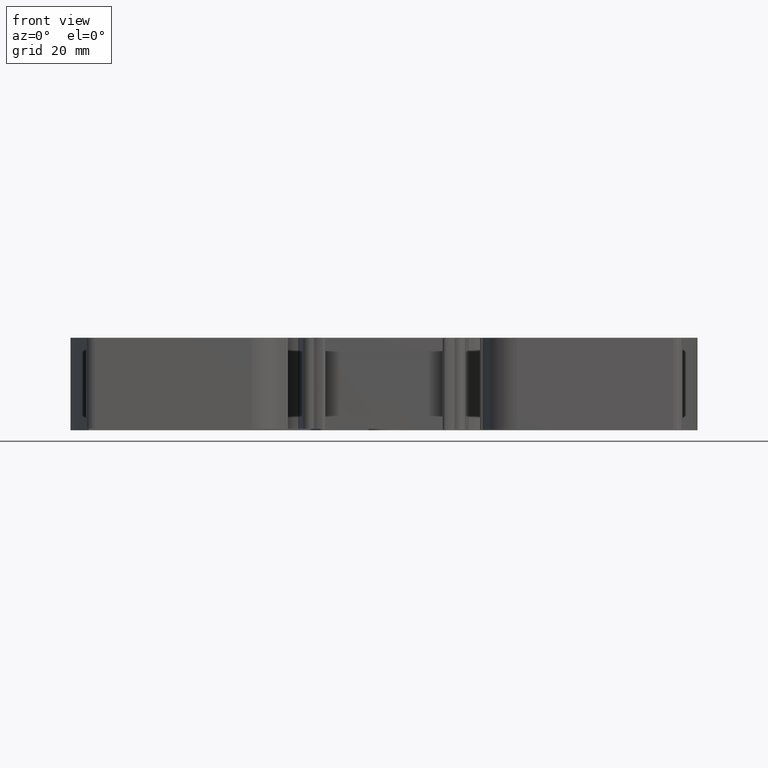
[diagram: clean part render]
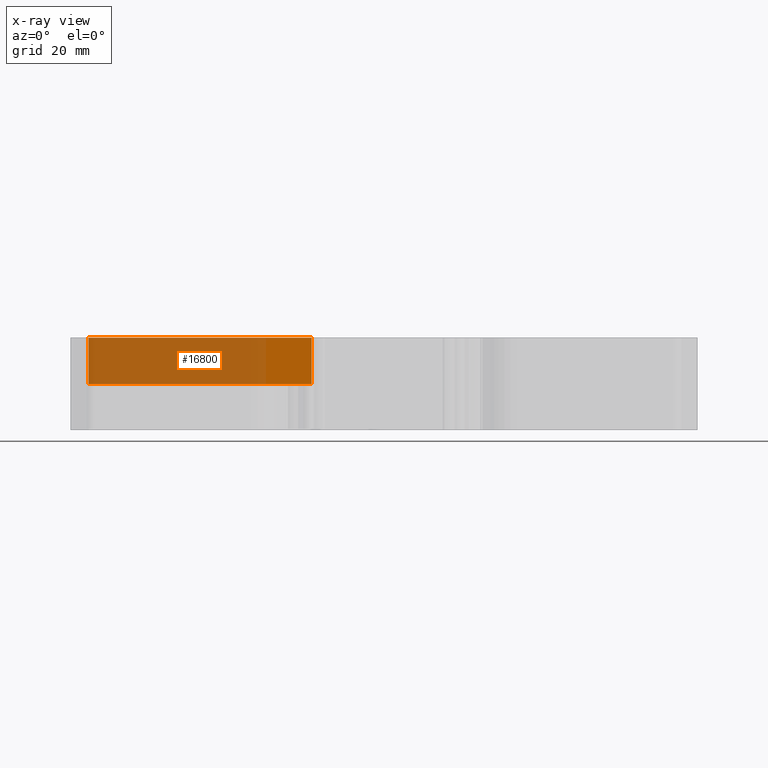
[diagram: x-ray — body ghosted, one internal face saturated and labeled with its STEP entity id]
A machine part, front view, then the same camera in x-ray: the body is ghosted and one INTERNAL B-rep face — a face not visible from any outside direction — is saturated and labeled: STEP entity #16800.
In plain terms, the highlighted planar face has unit normal (-0, -1, 0).
Its self-contained STEP definition (entity closure, byte-faithful):
#1463 = CARTESIAN_POINT ( 'NONE',  ( 1281.480267466846500, 408.3426663702593400, 7.500000000000059500 ) ) ;
#1464 = CARTESIAN_POINT ( 'NONE',  ( 1318.110732044399600, 408.3426663702590000, 7.500000000000017800 ) ) ;
#1504 = CARTESIAN_POINT ( 'NONE',  ( 1281.480267466846300, 408.3426663702593900, 15.10000000000004900 ) ) ;
#1523 = CARTESIAN_POINT ( 'NONE',  ( 1318.110732044399400, 408.3426663702592200, 15.09999999999999800 ) ) ;
#3708 = EDGE_CURVE ( 'NONE', #11701, #11673, #15995, .T. ) ;
#3998 = PLANE ( 'NONE',  #6973 ) ;
#3999 = DIRECTION ( 'NONE',  ( -1.204753884304034000E-014, -1.000000000000000000, 0.0000000000000000000 ) ) ;
#4026 = FACE_OUTER_BOUND ( 'NONE', #5174, .T. ) ;
#4037 = DIRECTION ( 'NONE',  ( 1.000000000000000000, -1.204753884304034000E-014, 0.0000000000000000000 ) ) ;
#4069 = CARTESIAN_POINT ( 'NONE',  ( 1281.480267466846700, 408.3426663702594500, -113.6660136188508800 ) ) ;
#4234 = EDGE_CURVE ( 'NONE', #11673, #11808, #9154, .T. ) ;
#4262 = EDGE_CURVE ( 'NONE', #11701, #11838, #9176, .T. ) ;
#4283 = EDGE_CURVE ( 'NONE', #11838, #11808, #9273, .T. ) ;
#5174 = EDGE_LOOP ( 'NONE', ( #7379, #7393, #7409, #7397 ) ) ;
#6188 = VECTOR ( 'NONE', #9206, 1000.000000000000000 ) ;
#6202 = VECTOR ( 'NONE', #9129, 1000.000000000000000 ) ;
#6229 = VECTOR ( 'NONE', #9252, 1000.000000000000000 ) ;
#6973 = AXIS2_PLACEMENT_3D ( 'NONE', #4069, #3999, #4037 ) ;
#7379 = ORIENTED_EDGE ( 'NONE', *, *, #3708, .T. ) ;
#7393 = ORIENTED_EDGE ( 'NONE', *, *, #4234, .T. ) ;
#7397 = ORIENTED_EDGE ( 'NONE', *, *, #4262, .F. ) ;
#7409 = ORIENTED_EDGE ( 'NONE', *, *, #4283, .F. ) ;
#9129 = DIRECTION ( 'NONE',  ( 0.0000000000000000000, 0.0000000000000000000, 1.000000000000000000 ) ) ;
#9146 = CARTESIAN_POINT ( 'NONE',  ( 1318.110732044399600, 408.3426663702590000, -113.6660136188508800 ) ) ;
#9154 = LINE ( 'NONE', #9146, #6202 ) ;
#9176 = LINE ( 'NONE', #9178, #6188 ) ;
#9178 = CARTESIAN_POINT ( 'NONE',  ( 1281.480267466846300, 408.3426663702593900, -113.6660136188508800 ) ) ;
#9206 = DIRECTION ( 'NONE',  ( 0.0000000000000000000, 0.0000000000000000000, 1.000000000000000000 ) ) ;
#9252 = DIRECTION ( 'NONE',  ( 1.000000000000000000, 0.0000000000000000000, -0.0000000000000000000 ) ) ;
#9261 = CARTESIAN_POINT ( 'NONE',  ( 1282.007059505069900, 408.3426663702593900, 15.10000000000000100 ) ) ;
#9273 = LINE ( 'NONE', #9261, #6229 ) ;
#11673 = VERTEX_POINT ( 'NONE', #1464 ) ;
#11701 = VERTEX_POINT ( 'NONE', #1463 ) ;
#11808 = VERTEX_POINT ( 'NONE', #1523 ) ;
#11838 = VERTEX_POINT ( 'NONE', #1504 ) ;
#13288 = VECTOR ( 'NONE', #16000, 1000.000000000000000 ) ;
#15995 = LINE ( 'NONE', #16030, #13288 ) ;
#16000 = DIRECTION ( 'NONE',  ( 1.000000000000000000, -1.204753884304034000E-014, 0.0000000000000000000 ) ) ;
#16030 = CARTESIAN_POINT ( 'NONE',  ( 1281.480267466846700, 408.3426663702594500, 7.500000000000020400 ) ) ;
#16800 = ADVANCED_FACE ( 'NONE', ( #4026 ), #3998, .T. ) ;